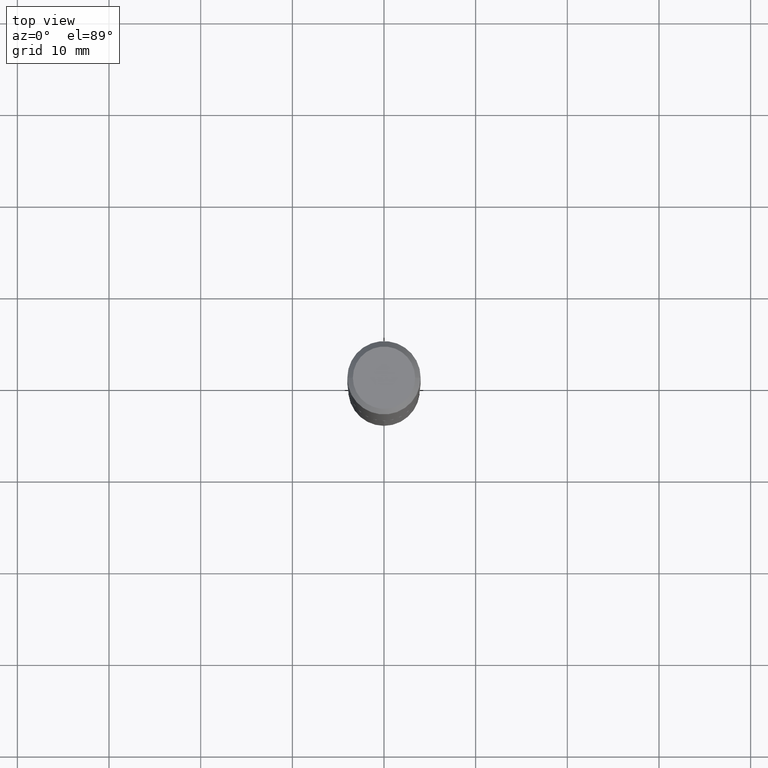
[diagram: clean part render]
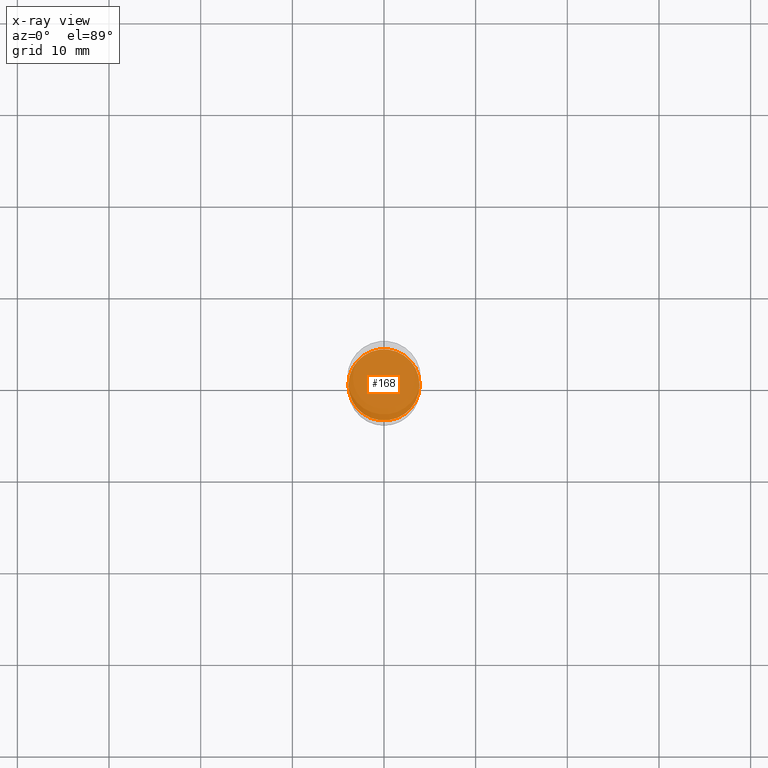
[diagram: x-ray — body ghosted, one internal face saturated and labeled with its STEP entity id]
A machine part, top view, then the same camera in x-ray: the body is ghosted and one INTERNAL B-rep face — a face not visible from any outside direction — is saturated and labeled: STEP entity #168.
In plain terms, the highlighted planar face has unit normal (-0, 0, 1).
Its self-contained STEP definition (entity closure, byte-faithful):
#8 = DIRECTION ( 'NONE',  ( -2.445468806185136597E-29, 3.491481338843145583E-15, 1.000000000000000000 ) ) ;
#50 = CARTESIAN_POINT ( 'NONE',  ( 4.409424804432420683E-29, -6.295490002068076239E-15, -1.803100000000000147 ) ) ;
#51 = EDGE_CURVE ( 'NONE', #311, #94, #485, .T. ) ;
#52 = CARTESIAN_POINT ( 'NONE',  ( 0.1530499999999999916, -7.364232439887959378E-15, -1.803100000000000147 ) ) ;
#94 = VERTEX_POINT ( 'NONE', #52 ) ;
#151 = CARTESIAN_POINT ( 'NONE',  ( -0.1530499999999999916, -5.205355117813131565E-15, -1.803100000000000147 ) ) ;
#158 = AXIS2_PLACEMENT_3D ( 'NONE', #384, #271, #432 ) ;
#168 = ADVANCED_FACE ( 'NONE', ( #293 ), #355, .F. ) ;
#174 = AXIS2_PLACEMENT_3D ( 'NONE', #469, #440, #379 ) ;
#271 = DIRECTION ( 'NONE',  ( -2.445468806185136597E-29, 3.491481338843145583E-15, 1.000000000000000000 ) ) ;
#274 = CIRCLE ( 'NONE', #158, 0.1530499999999999916 ) ;
#293 = FACE_OUTER_BOUND ( 'NONE', #424, .T. ) ;
#311 = VERTEX_POINT ( 'NONE', #151 ) ;
#316 = DIRECTION ( 'NONE',  ( 1.000000000000000000, -6.982962677686265922E-15, 0.000000000000000000 ) ) ;
#323 = ORIENTED_EDGE ( 'NONE', *, *, #423, .F. ) ;
#355 = PLANE ( 'NONE',  #174 ) ;
#379 = DIRECTION ( 'NONE',  ( 1.000000000000000000, -6.982962677686265922E-15, 4.876176775795935793E-29 ) ) ;
#384 = CARTESIAN_POINT ( 'NONE',  ( 4.409424804432420683E-29, -6.295490002068076239E-15, -1.803100000000000147 ) ) ;
#423 = EDGE_CURVE ( 'NONE', #94, #311, #274, .T. ) ;
#424 = EDGE_LOOP ( 'NONE', ( #323, #454 ) ) ;
#427 = AXIS2_PLACEMENT_3D ( 'NONE', #50, #8, #316 ) ;
#432 = DIRECTION ( 'NONE',  ( 1.000000000000000000, -6.982962677686265922E-15, 0.000000000000000000 ) ) ;
#440 = DIRECTION ( 'NONE',  ( -2.438088387897960049E-29, 3.491481338843145188E-15, 1.000000000000000000 ) ) ;
#454 = ORIENTED_EDGE ( 'NONE', *, *, #51, .F. ) ;
#469 = CARTESIAN_POINT ( 'NONE',  ( 2.162012621318008358E-29, -9.513912163045556497E-15, -1.803100000000000147 ) ) ;
#485 = CIRCLE ( 'NONE', #427, 0.1530499999999999916 ) ;